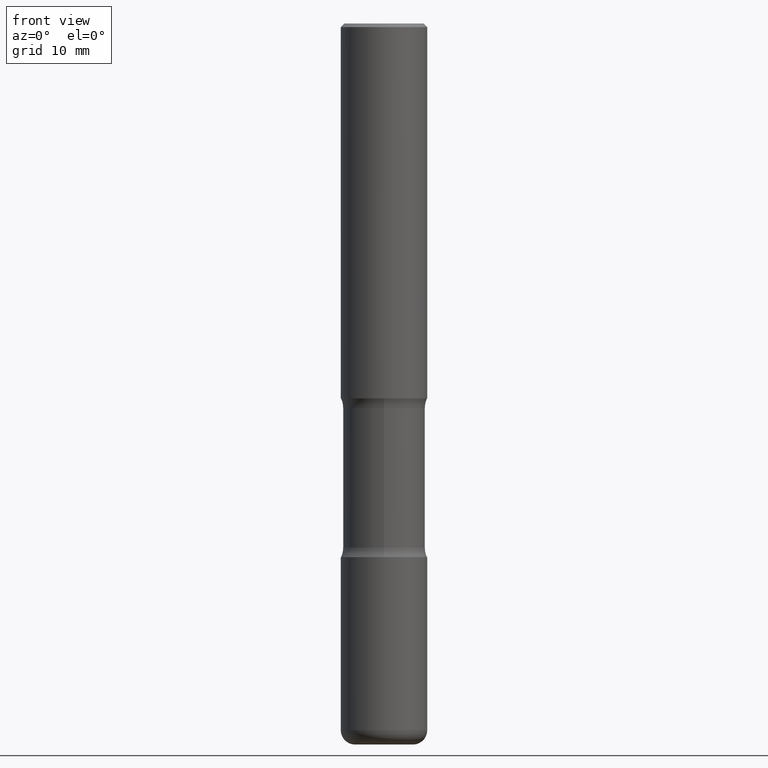
[diagram: clean part render]
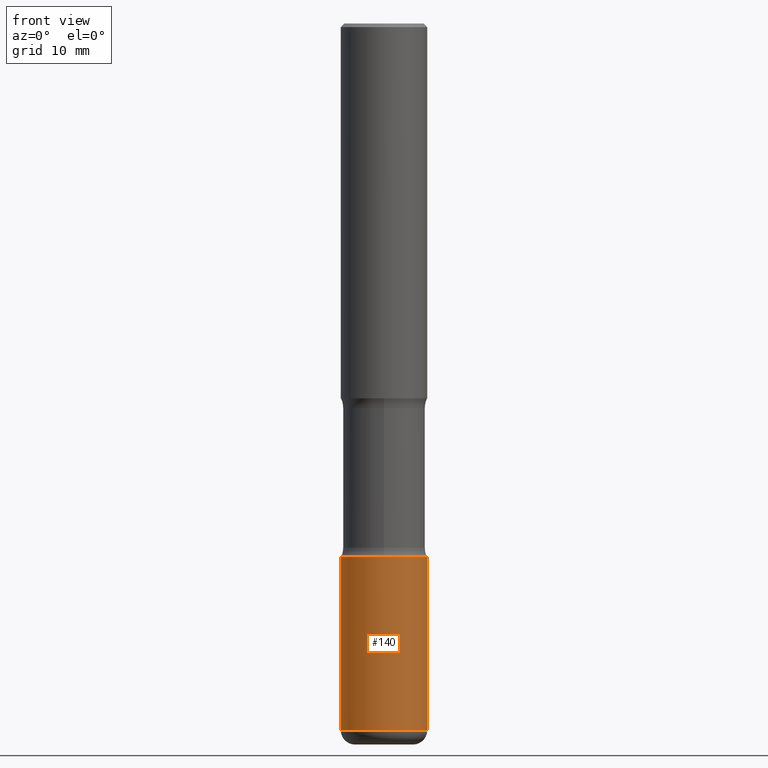
[diagram: same view with one face highlighted and labeled with its STEP entity id]
A machine part, front view. The second image highlights one B-rep face of the part: STEP entity #140.
In plain terms, the highlighted cylindrical surface (partial cylindrical patch) has radius 5.9995 mm, axis along (-0, 0, 1).
Its self-contained STEP definition (entity closure, byte-faithful):
#8 = CARTESIAN_POINT ( 'NONE',  ( 0.2362000000000003264, -1.512055823412800345E-14, -3.858299999999998509 ) ) ;
#15 = AXIS2_PLACEMENT_3D ( 'NONE', #37, #251, #169 ) ;
#28 = EDGE_CURVE ( 'NONE', #114, #275, #127, .T. ) ;
#30 = ORIENTED_EDGE ( 'NONE', *, *, #531, .T. ) ;
#33 = CIRCLE ( 'NONE', #41, 0.2362000000000001321 ) ;
#37 = CARTESIAN_POINT ( 'NONE',  ( 9.435352294904109900E-29, -1.347118244965850534E-14, -3.858299999999998509 ) ) ;
#38 = EDGE_CURVE ( 'NONE', #66, #224, #33, .T. ) ;
#40 = FACE_OUTER_BOUND ( 'NONE', #191, .T. ) ;
#41 = AXIS2_PLACEMENT_3D ( 'NONE', #124, #466, #382 ) ;
#49 = VECTOR ( 'NONE', #171, 39.37007874015748143 ) ;
#63 = AXIS2_PLACEMENT_3D ( 'NONE', #96, #268, #181 ) ;
#66 = VERTEX_POINT ( 'NONE', #130 ) ;
#80 = CARTESIAN_POINT ( 'NONE',  ( -0.2362000000000003264, -1.179288050779314737E-14, -3.858299999999998509 ) ) ;
#96 = CARTESIAN_POINT ( 'NONE',  ( 0.000000000000000000, 0.000000000000000000, 0.000000000000000000 ) ) ;
#114 = VERTEX_POINT ( 'NONE', #80 ) ;
#124 = CARTESIAN_POINT ( 'NONE',  ( 7.124628819939777829E-29, -1.017208173258562247E-14, -2.913400000000000212 ) ) ;
#127 = CIRCLE ( 'NONE', #15, 0.2362000000000002153 ) ;
#130 = CARTESIAN_POINT ( 'NONE',  ( -0.2362000000000001321, -1.014333014925670672E-14, -2.913400000000000212 ) ) ;
#140 = ADVANCED_FACE ( 'NONE', ( #40 ), #433, .T. ) ;
#169 = DIRECTION ( 'NONE',  ( 1.000000000000000000, -6.982962677686266711E-15, 0.000000000000000000 ) ) ;
#171 = DIRECTION ( 'NONE',  ( -2.445468806185136877E-29, 3.491481338843145188E-15, 1.000000000000000000 ) ) ;
#181 = DIRECTION ( 'NONE',  ( 1.000000000000000000, -6.982962677686266711E-15, 4.876176775795936353E-29 ) ) ;
#191 = EDGE_LOOP ( 'NONE', ( #238, #255, #30, #360 ) ) ;
#220 = EDGE_CURVE ( 'NONE', #114, #66, #312, .T. ) ;
#222 = CARTESIAN_POINT ( 'NONE',  ( -0.2362000000000001598, 1.678301941865357775E-15, -1.161852468318209598E-29 ) ) ;
#224 = VERTEX_POINT ( 'NONE', #399 ) ;
#238 = ORIENTED_EDGE ( 'NONE', *, *, #220, .F. ) ;
#249 = CARTESIAN_POINT ( 'NONE',  ( 0.2362000000000001598, -1.649375784469497314E-15, 1.151752954443000929E-29 ) ) ;
#251 = DIRECTION ( 'NONE',  ( -2.445468806185136597E-29, 3.491481338843145583E-15, 1.000000000000000000 ) ) ;
#255 = ORIENTED_EDGE ( 'NONE', *, *, #28, .T. ) ;
#268 = DIRECTION ( 'NONE',  ( -2.445468806185136597E-29, 3.491481338843145583E-15, 1.000000000000000000 ) ) ;
#275 = VERTEX_POINT ( 'NONE', #8 ) ;
#312 = LINE ( 'NONE', #222, #388 ) ;
#360 = ORIENTED_EDGE ( 'NONE', *, *, #38, .F. ) ;
#382 = DIRECTION ( 'NONE',  ( 1.000000000000000000, -6.982962677686269077E-15, 0.000000000000000000 ) ) ;
#388 = VECTOR ( 'NONE', #524, 39.37007874015748143 ) ;
#399 = CARTESIAN_POINT ( 'NONE',  ( 0.2362000000000001321, -1.182145751705511899E-14, -2.913400000000000212 ) ) ;
#433 = CYLINDRICAL_SURFACE ( 'NONE', #63, 0.2362000000000001598 ) ;
#465 = LINE ( 'NONE', #249, #49 ) ;
#466 = DIRECTION ( 'NONE',  ( -2.445468806185136597E-29, 3.491481338843145583E-15, 1.000000000000000000 ) ) ;
#524 = DIRECTION ( 'NONE',  ( -2.445468806185136877E-29, 3.491481338843145188E-15, 1.000000000000000000 ) ) ;
#531 = EDGE_CURVE ( 'NONE', #275, #224, #465, .T. ) ;